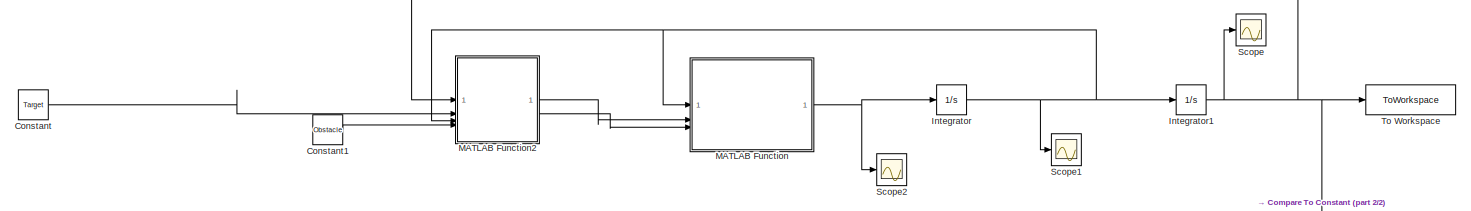
[diagram: root canvas - part 1/2, full width, middle band]
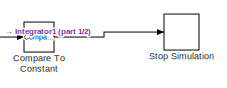
[diagram: root canvas - part 2/2, bottom right region]
MODEL slx_13f2fae56d2a
KIND model
CONFIG AbsTol = auto
CONFIG EnableMultiTasking = off
CONFIG FixedStep = auto
CONFIG MaxStep = auto
CONFIG MinStep = auto
CONFIG RelTol = 1e-3
CONFIG SampleTimeConstraint = Unconstrained
CONFIG SolverName = VariableStepAuto
CONFIG StartTime = 0.0
CONFIG StopTime = TF
BLOCK [Reference] Compare To Constant  REF=simulink/Logic and Bit
Operations/Compare
To Constant
  SourceBlock = simulink/Logic and Bit\nOperations/Compare\nTo Constant
  SourceType = Compare To Constant
BLOCK [Constant] Constant
  Value = Target
BLOCK [Constant] Constant1
  Value = Obstacle
BLOCK [Integrator] Integrator
  InitialCondition = x0
BLOCK [Integrator] Integrator1
  InitialCondition = [0; 0]
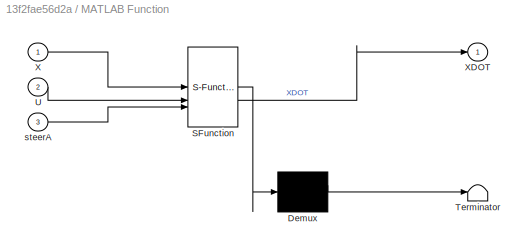
BLOCK [SubSystem] MATLAB Function
  ErrorFcn = Stateflow.Translate.translate
  PermitHierarchicalResolution = ExplicitOnly
  SFBlockType = MATLAB Function
  TreatAsAtomicUnit = on
BLOCK [Demux] MATLAB Function/ Demux 
  Outputs = 1
BLOCK [S-Function] MATLAB Function/ SFunction 
  EnableBusSupport = on
  FunctionName = sf_sfun
  PortCounts = [3 2]
  SFcnIsStateOwnerBlock = off
  SFunctionDeploymentMode = off
  Tag = Stateflow S-Function 2
BLOCK [Terminator] MATLAB Function/ Terminator 
BLOCK [Inport] MATLAB Function/U
  Port = 2
BLOCK [Inport] MATLAB Function/X
BLOCK [Outport] MATLAB Function/XDOT
BLOCK [Inport] MATLAB Function/steerA
  Port = 3
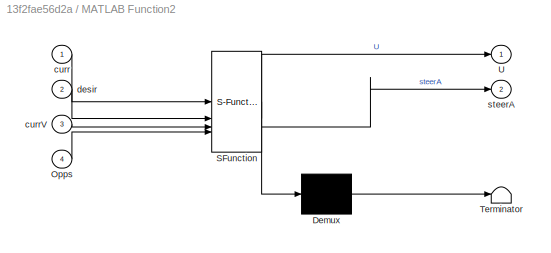
BLOCK [SubSystem] MATLAB Function2
  ErrorFcn = Stateflow.Translate.translate
  PermitHierarchicalResolution = ExplicitOnly
  SFBlockType = MATLAB Function
  TreatAsAtomicUnit = on
BLOCK [Demux] MATLAB Function2/ Demux 
  Outputs = 1
BLOCK [S-Function] MATLAB Function2/ SFunction 
  EnableBusSupport = on
  FunctionName = sf_sfun
  PortCounts = [4 3]
  SFcnIsStateOwnerBlock = off
  SFunctionDeploymentMode = off
  Tag = Stateflow S-Function 3
BLOCK [Terminator] MATLAB Function2/ Terminator 
BLOCK [Inport] MATLAB Function2/Opps
  Port = 4
BLOCK [Outport] MATLAB Function2/U
BLOCK [Inport] MATLAB Function2/curr
BLOCK [Inport] MATLAB Function2/currV
  Port = 3
BLOCK [Inport] MATLAB Function2/desir
  Port = 2
BLOCK [Outport] MATLAB Function2/steerA
  Port = 2
BLOCK [Scope] Scope
  Floating = off
  NumInputPorts = 1
  ScopeSpecificationString = Simulink.scopes.TimeScopeBlockCfg('CurrentConfiguration', extmgr.ConfigurationSet(extmgr.Configuration('Core','General UI',true),extmgr.Configuration('Core','Source UI',true),extmgr.Configuration('Sources','WiredSimulink',true),extmgr.Configuration('Visuals','Time Domain',true,'SerializedDisplays',{struct('MinYLimReal','-125.00000','MaxYLimReal','1125.00000','YLabelReal','','MinYLimMag',' 0.00000'...<+1442ch>
BLOCK [Scope] Scope1
  Floating = off
  NumInputPorts = 1
  ScopeSpecificationString = Simulink.scopes.TimeScopeBlockCfg('CurrentConfiguration', extmgr.ConfigurationSet(extmgr.Configuration('Core','General UI',true),extmgr.Configuration('Core','Source UI',true),extmgr.Configuration('Sources','WiredSimulink',true,'DataLoggingVariableName','ScopeData1'),extmgr.Configuration('Visuals','Time Domain',true,'SerializedDisplays',{struct('MinYLimReal','88.12085','MaxYLimReal','89.72921','YLa...<+1438ch>
BLOCK [Scope] Scope2
  Floating = off
  NumInputPorts = 1
  ScopeSpecificationString = Simulink.scopes.TimeScopeBlockCfg('CurrentConfiguration', extmgr.ConfigurationSet(extmgr.Configuration('Core','General UI',true),extmgr.Configuration('Core','Source UI',true),extmgr.Configuration('Sources','WiredSimulink',true,'DataLoggingVariableName','ScopeData2'),extmgr.Configuration('Visuals','Time Domain',true,'SerializedDisplays',{struct('MinYLimReal','-0.34931','MaxYLimReal','-0.34718','YLa...<+1446ch>
BLOCK [Stop] Stop Simulation
BLOCK [ToWorkspace] To Workspace
  FixptAsFi = on
  MaxDataPoints = inf
  SampleTime = -1
  SaveFormat = Structure With Time
  VariableName = simpos
LINE Compare To Constant:1 -> Stop Simulation:1
LINE Constant1:1 -> MATLAB Function2:4
LINE Constant:1 -> MATLAB Function2:2
NET Integrator1:1 -> Compare To Constant:1, MATLAB Function2:1, Scope:1, To Workspace:1
NET Integrator:1 -> Integrator1:1, MATLAB Function2:3, MATLAB Function:1, Scope1:1
LINE MATLAB Function2:1 -> MATLAB Function:2
LINE MATLAB Function2:2 -> MATLAB Function:3
NET MATLAB Function:1 -> Integrator:1, Scope2:1
note: NET lines group one-source signal fan-out (src -> all destinations, sorted); 1:1 wires keep LINE
CHART MATLAB Function states=1 transitions=1
  STATE_LABEL 'eML_blk_kernel()'
  STATE_LABEL "SCRIPT:\nfunction XDOT    = pointmass(X,U,steerA)\n\nm = 3\ng = 9.81\n\n%State Variables\nx1 = X(1) %U\nx2 = X(2) %V\n\n%Control Variables\n\n% U(1) = m * g * u3 * sin(o)\n% U(2) = m * g * u3 * cos(o)\n\nu1 = U(1) * m %Forces x\nu2 = U(2) * m %Forces y\n%u3 = U(3) %throttle position\nIntAng = atand(u1/u2)\n\n%Determine the direction of vehicle's velocity\no = atand(x1/x2)\nb = 30\n%Speed of V\nVa = sqrt(x1^2 + x2^2)\n\n\n%F...<+829ch>"
CHART MATLAB Function2 states=1 transitions=1
  STATE_LABEL 'eML_blk_kernel()'
  STATE_LABEL 'SCRIPT:\nfunction [U,steerA]  = fcn(curr,desir,currV,Opps)\nerror = desir - curr\nnumOpps = length(Opps(1,:))\n% for x = 1:numOpps\n%     diff = abs(Opps(x,:) - curr)\n%     if diff(1) <= 25 & diff(2) <= 25\n%         oppsAV = 1\n%         steerAx = -diff(1) * 30\n%         steerAy = -diff(2) * 30\n%     % elseif diff(1) <= 25 & diff(2) > 25\n%     %     oppsAV = 1\n%     %     steerAx = -diff(1) * 30\n%     %...<+547ch>'
CHART  states=0 transitions=0
CHART  states=0 transitions=0
